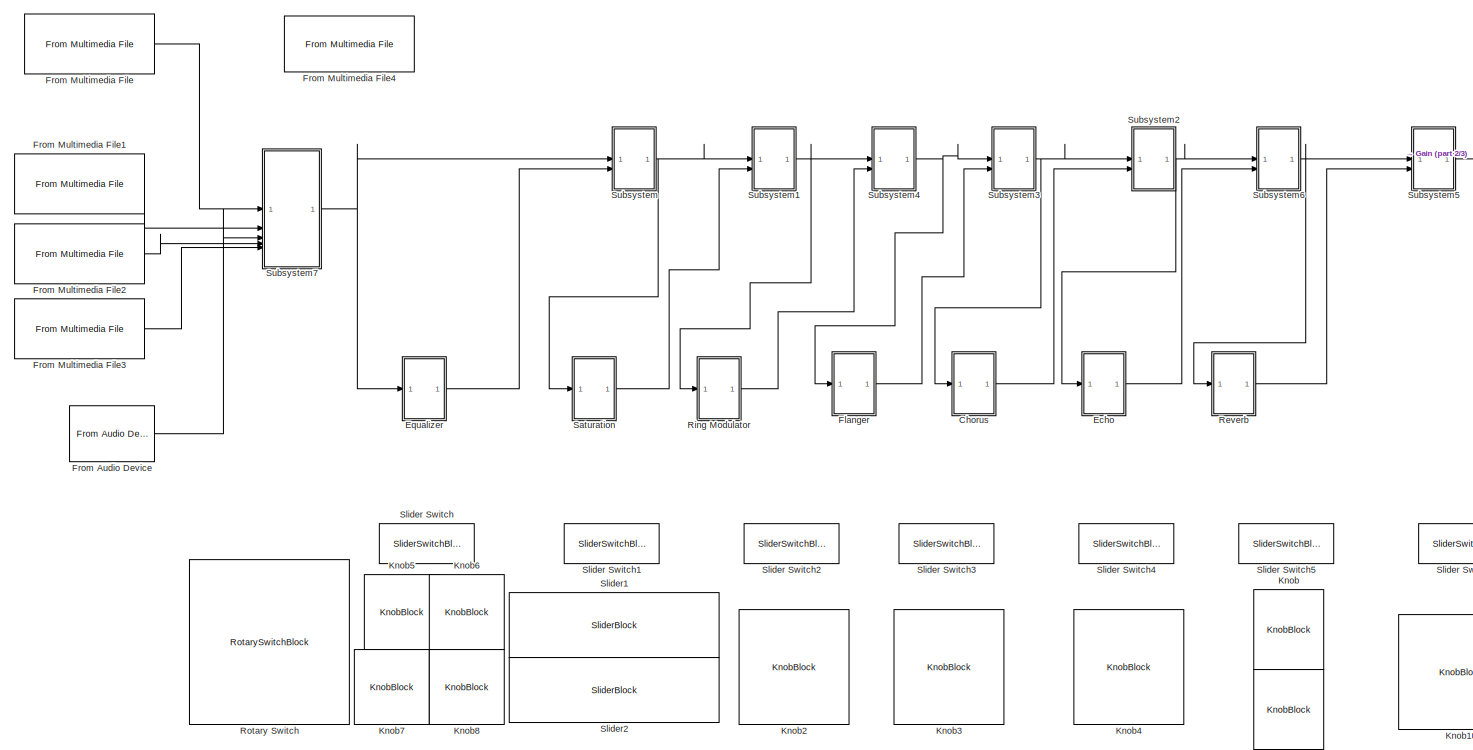
[diagram: root canvas - part 1/3, most of the canvas]
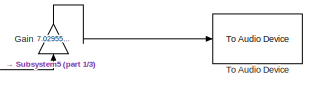
[diagram: root canvas - part 2/3, top right region]
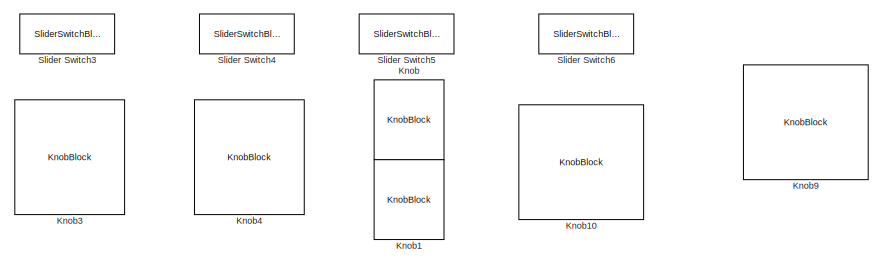
[diagram: root canvas - part 3/3, bottom right region]
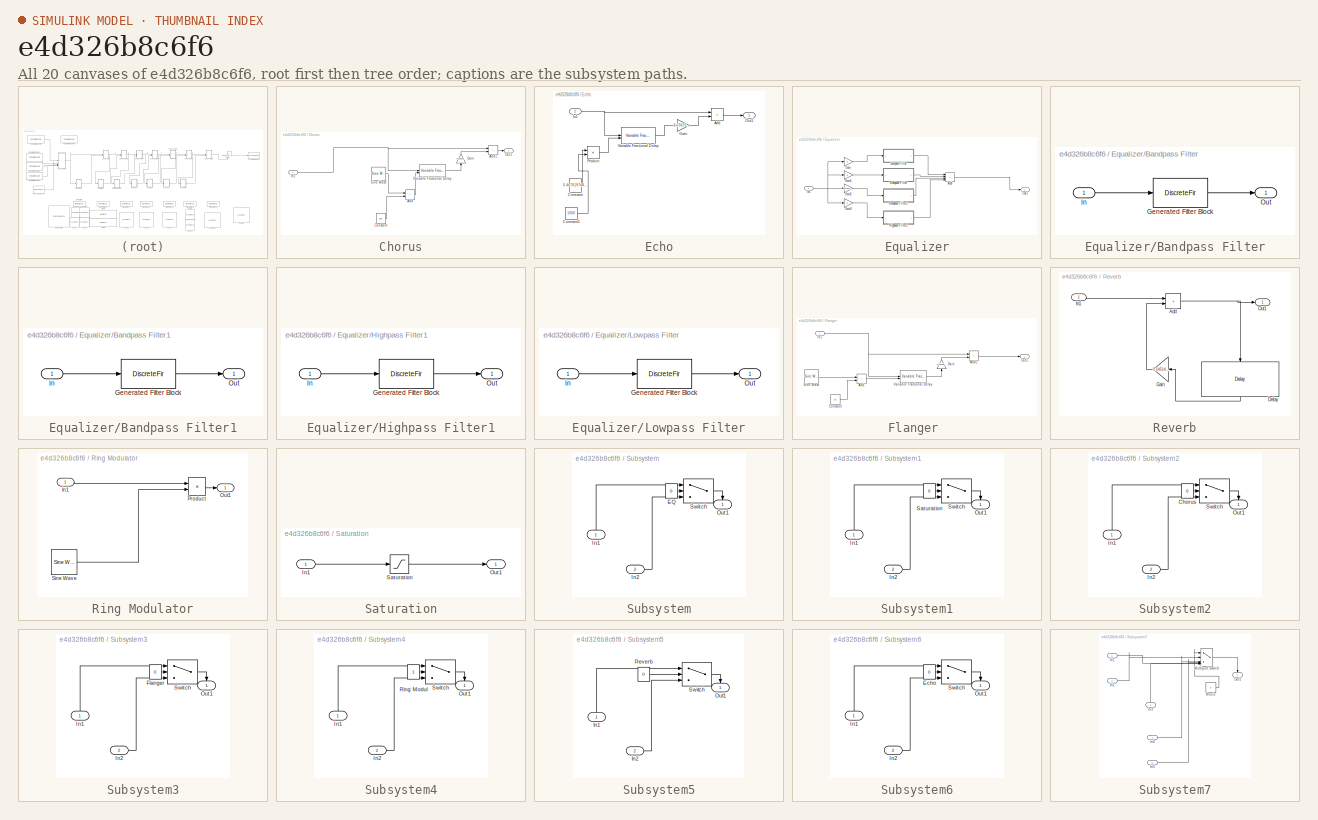
[diagram: thumbnail index - all 20 canvases of the model, root first then tree order]
MODEL slx_e4d326b8c6f6
KIND model
CONFIG AbsTol = auto
CONFIG EnableMultiTasking = off
CONFIG FixedStep = auto
CONFIG MaxStep = auto
CONFIG MinStep = auto
CONFIG RelTol = 1e-3
CONFIG SampleTimeConstraint = Unconstrained
CONFIG SolverName = VariableStepAuto
CONFIG StartTime = 0.0
CONFIG StopTime = 1000
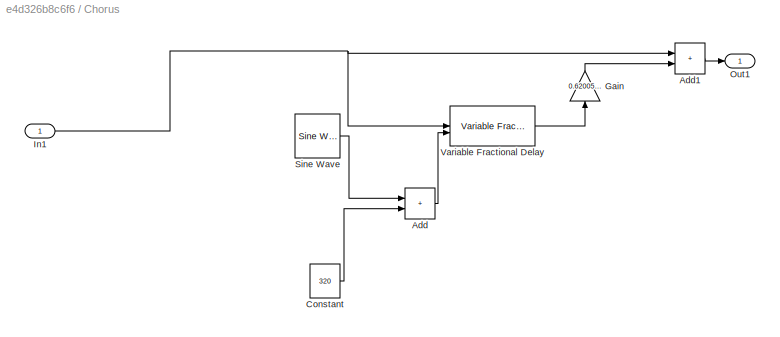
BLOCK [SubSystem] Chorus
BLOCK [Sum] Chorus/Add
  IconShape = rectangular
BLOCK [Sum] Chorus/Add1
  IconShape = rectangular
BLOCK [Constant] Chorus/Constant
  Value = 320
  VectorParams1D = off
BLOCK [Gain] Chorus/Gain
  Gain = 0.6200574119339334
  NameLocation = right
BLOCK [Inport] Chorus/In1
BLOCK [Outport] Chorus/Out1
BLOCK [Reference] Chorus/Sine Wave  REF=dspsrcs4/Sine Wave
  SourceBlock = dspsrcs4/Sine Wave
  SourceType = Sine Wave
BLOCK [Reference] Chorus/Variable Fractional Delay  REF=dspsigops/Variable
Fractional Delay
  SourceBlock = dspsigops/Variable\nFractional Delay
  SourceType = Variable Fractional Delay
  UserDataPersistent = on
BLOCK [SubSystem] Echo
BLOCK [Sum] Echo/Add
  IconShape = rectangular
BLOCK [Constant] Echo/Constant
  Value = 6.467019744697029
  VectorParams1D = off
BLOCK [Constant] Echo/Constant1
  Value = 1000
BLOCK [Gain] Echo/Gain
  Gain = 0.7007023620605469
BLOCK [Inport] Echo/In1
BLOCK [Outport] Echo/Out1
BLOCK [Product] Echo/Product
BLOCK [Reference] Echo/Variable Fractional Delay  REF=dspsigops/Variable
Fractional Delay
  SourceBlock = dspsigops/Variable\nFractional Delay
  SourceType = Variable Fractional Delay
  UserDataPersistent = on
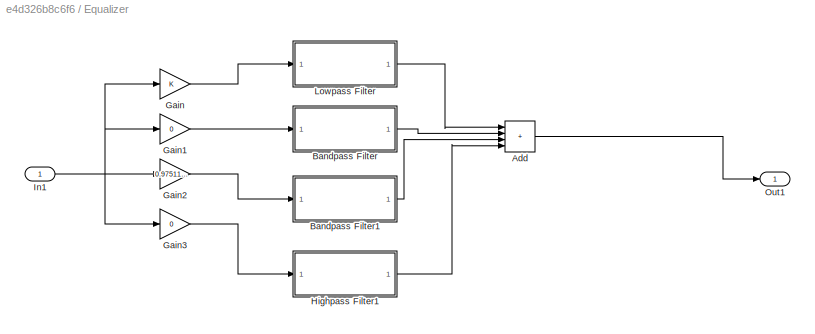
BLOCK [SubSystem] Equalizer
BLOCK [Sum] Equalizer/Add
  IconShape = rectangular
  Inputs = ++++
BLOCK [SubSystem] Equalizer/Bandpass Filter
  CopyFcn = fdesignblkfcn(gcbh, {'CopyFcn'});
  DialogController = fdesignblkfcn
  InitFcn = fdesignblkfcn(gcbh, {'InitFcn'});
  UserDataPersistent = on
BLOCK [DiscreteFir] Equalizer/Bandpass Filter/Generated Filter Block
  Coefficients = [-0.034227365537242295 0.018312757492087928 0.05932130178861178 -0.015649458947768258 0.0096465114342621835 -0.029035785159490478 -0.015761984269044724 -0.037689628472410135 -0.03202966742034466 -0.044813544994417052 -0.042077522064569023 -0.047994018438133036 -0.044347414970127598 -0.043895492779424998 -0.036914882245408523 -0.030447360988786105 -0.019612599669352172 -0.00858331876634379 0.004786...<+697ch>
  InputPortMap = u0
  InputProcessing = Columns as channels (frame based)
  OutputPortMap = o0
  Tag = BlockMethodSubSystem
BLOCK [Inport] Equalizer/Bandpass Filter/In
BLOCK [Outport] Equalizer/Bandpass Filter/Out
BLOCK [SubSystem] Equalizer/Bandpass Filter1
  CopyFcn = fdesignblkfcn(gcbh, {'CopyFcn'});
  DialogController = fdesignblkfcn
  InitFcn = fdesignblkfcn(gcbh, {'InitFcn'});
  UserDataPersistent = on
BLOCK [DiscreteFir] Equalizer/Bandpass Filter1/Generated Filter Block
  Coefficients = [-0.071193933975794793 0.042567551632574072 0.023370929263920877 0.0067492245502078505 -0.0056303528823154706 -0.012406515894683801 -0.012509643538729659 -0.0056607808720928483 0.0073925777727120202 0.024156862094491815 0.040950617859290002 0.05303589501571479 0.05614662588295434 0.047414277531303138 0.026950275664504888 -0.0021817284297539169 -0.033973814822860146 -0.06117405180846118 -0.07656021...<+699ch>
  InputPortMap = u0
  InputProcessing = Columns as channels (frame based)
  OutputPortMap = o0
  Tag = BlockMethodSubSystem
BLOCK [Inport] Equalizer/Bandpass Filter1/In
BLOCK [Outport] Equalizer/Bandpass Filter1/Out
BLOCK [Gain] Equalizer/Gain
BLOCK [Gain] Equalizer/Gain1
  Gain = 0
BLOCK [Gain] Equalizer/Gain2
  Gain = 0.9751138139661
BLOCK [Gain] Equalizer/Gain3
  Gain = 0
BLOCK [SubSystem] Equalizer/Highpass Filter1
  CopyFcn = fdesignblkfcn(gcbh, {'CopyFcn'});
  DialogController = fdesignblkfcn
  InitFcn = fdesignblkfcn(gcbh, {'InitFcn'});
  UserDataPersistent = on
BLOCK [DiscreteFir] Equalizer/Highpass Filter1/Generated Filter Block
  Coefficients = [0.018474008886137774 -0.07093427222798343 -0.026736009141952864 -0.012590249565781884 -0.0029223409381482746 0.0064166158658349477 0.01376997205732409 0.016707240639420411 0.013639039609664469 0.0049637238837780427 -0.0068574716590106451 -0.017827795097230564 -0.023758479772147303 -0.021504192552314477 -0.010454091224033886 0.0070581716995950124 0.025786675130562247 0.038995997151154212 0.0400909...<+699ch>
  InputPortMap = u0
  InputProcessing = Columns as channels (frame based)
  OutputPortMap = o0
  Tag = BlockMethodSubSystem
BLOCK [Inport] Equalizer/Highpass Filter1/In
BLOCK [Outport] Equalizer/Highpass Filter1/Out
BLOCK [Inport] Equalizer/In1
BLOCK [SubSystem] Equalizer/Lowpass Filter
  CopyFcn = fdesignblkfcn(gcbh, {'CopyFcn'});
  DialogController = fdesignblkfcn
  InitFcn = fdesignblkfcn(gcbh, {'InitFcn'});
  UserDataPersistent = on
BLOCK [DiscreteFir] Equalizer/Lowpass Filter/Generated Filter Block
  Coefficients = [-0.067571599194720749 0.028366275622582534 0.024365308441611347 0.021834882196456632 0.020229321096330865 0.019593102757112429 0.019467767446300618 0.01970710174125179 0.020316328767870182 0.021189381305964993 0.022233119686554535 0.023289912862881998 0.024434404835929416 0.025590101085555161 0.026793987513412713 0.027904494200213244 0.028994063526814901 0.029963415719363243 0.030889637193174065 ...<+670ch>
  InputPortMap = u0
  InputProcessing = Columns as channels (frame based)
  OutputPortMap = o0
  Tag = BlockMethodSubSystem
BLOCK [Inport] Equalizer/Lowpass Filter/In
BLOCK [Outport] Equalizer/Lowpass Filter/Out
BLOCK [Outport] Equalizer/Out1
BLOCK [SubSystem] Flanger 
BLOCK [Sum] Flanger /Add
  IconShape = rectangular
BLOCK [Sum] Flanger /Add1
  IconShape = rectangular
BLOCK [Constant] Flanger /Constant
  Value = 25
  VectorParams1D = off
BLOCK [Gain] Flanger /Gain
  Gain = 0.762192710491
  NameLocation = right
BLOCK [Inport] Flanger /In1
BLOCK [Outport] Flanger /Out1
BLOCK [Reference] Flanger /Sine Wave  REF=dspsrcs4/Sine Wave
  SourceBlock = dspsrcs4/Sine Wave
  SourceType = Sine Wave
BLOCK [Reference] Flanger /Variable Fractional Delay  REF=dspsigops/Variable
Fractional Delay
  SourceBlock = dspsigops/Variable\nFractional Delay
  SourceType = Variable Fractional Delay
  UserDataPersistent = on
BLOCK [Reference] From Audio Device  REF=dspobslib/From Audio
Device
  SourceBlock = dspobslib/From Audio\nDevice
  SourceType = From Audio Device
BLOCK [Reference] From Multimedia File  REF=dspvision/From Multimedia File
  Commented = on
  SourceBlock = dspvision/From Multimedia File
  SourceType = From Multimedia File
BLOCK [Reference] From Multimedia File1  REF=dspvision/From Multimedia File
  Commented = on
  SourceBlock = dspvision/From Multimedia File
  SourceType = From Multimedia File
BLOCK [Reference] From Multimedia File2  REF=dspvision/From Multimedia File
  Commented = on
  SourceBlock = dspvision/From Multimedia File
  SourceType = From Multimedia File
BLOCK [Reference] From Multimedia File3  REF=dspvision/From Multimedia File
  Commented = on
  SourceBlock = dspvision/From Multimedia File
  SourceType = From Multimedia File
BLOCK [Reference] From Multimedia File4  REF=dspvision/From Multimedia File
  SourceBlock = dspvision/From Multimedia File
  SourceType = From Multimedia File
BLOCK [Gain] Gain
  Gain = 7.029555285551793
  NameLocation = right
BLOCK [KnobBlock] Knob
  ScaleMax = 10
  ScaleMin = 5
BLOCK [KnobBlock] Knob1
  ScaleMax = 1
BLOCK [KnobBlock] Knob10
  ScaleMax = 1
BLOCK [KnobBlock] Knob2
  ScaleMax = 1000
BLOCK [KnobBlock] Knob3
  ScaleMax = 1
BLOCK [KnobBlock] Knob4
  ScaleMax = 1
BLOCK [KnobBlock] Knob5
  ScaleMax = 1
BLOCK [KnobBlock] Knob6
  ScaleMax = 1
BLOCK [KnobBlock] Knob7
  ScaleMax = 1
BLOCK [KnobBlock] Knob8
  ScaleMax = 1
BLOCK [KnobBlock] Knob9
  ScaleMax = 10
BLOCK [SubSystem] Reverb
BLOCK [Sum] Reverb/Add
  IconShape = rectangular
BLOCK [Delay] Reverb/Delay
  DelayLength = 1024
  DelayLengthUpperLimit = 5000
  InitialCondition = 4000
  InputPortMap = u0
  InputProcessing = Columns as channels (frame based)
  NameLocation = left
BLOCK [Gain] Reverb/Gain
  Gain = 0.1451481246948242
  NameLocation = top
BLOCK [Inport] Reverb/In1
BLOCK [Outport] Reverb/Out1
BLOCK [SubSystem] Ring Modulator
BLOCK [Inport] Ring Modulator/In1
BLOCK [Outport] Ring Modulator/Out1
BLOCK [Product] Ring Modulator/Product
BLOCK [Reference] Ring Modulator/Sine Wave  REF=dspsrcs4/Sine Wave
  SourceBlock = dspsrcs4/Sine Wave
  SourceType = Sine Wave
BLOCK [RotarySwitchBlock] Rotary Switch
BLOCK [SubSystem] Saturation
BLOCK [Inport] Saturation/In1
BLOCK [Outport] Saturation/Out1
BLOCK [Saturate] Saturation/Saturation
  LowerLimit = -1.238950010942405
  UpperLimit = 0.7447514266955877
BLOCK [SliderSwitchBlock] Slider Switch
BLOCK [SliderSwitchBlock] Slider Switch1
BLOCK [SliderSwitchBlock] Slider Switch2
BLOCK [SliderSwitchBlock] Slider Switch3
BLOCK [SliderSwitchBlock] Slider Switch4
BLOCK [SliderSwitchBlock] Slider Switch5
BLOCK [SliderSwitchBlock] Slider Switch6
BLOCK [SliderBlock] Slider1
  ScaleMax = 5
  ScaleMin = 0.1
BLOCK [SliderBlock] Slider2
  ScaleMax = -0.1
  ScaleMin = -5
BLOCK [SubSystem] Subsystem
BLOCK [Constant] Subsystem/EQ
  Value = 0
  VectorParams1D = off
BLOCK [Inport] Subsystem/In1
  NameLocation = right
BLOCK [Inport] Subsystem/In2
  Port = 2
BLOCK [Outport] Subsystem/Out1
  NameLocation = right
BLOCK [Switch] Subsystem/Switch
  Criteria = u2 > Threshold
  InputSameDT = off
  SaturateOnIntegerOverflow = off
BLOCK [SubSystem] Subsystem1
BLOCK [Inport] Subsystem1/In1
  NameLocation = right
BLOCK [Inport] Subsystem1/In2
  Port = 2
BLOCK [Outport] Subsystem1/Out1
  NameLocation = right
BLOCK [Constant] Subsystem1/Saturation
  Value = 0
  VectorParams1D = off
BLOCK [Switch] Subsystem1/Switch
  Criteria = u2 > Threshold
  InputSameDT = off
  SaturateOnIntegerOverflow = off
BLOCK [SubSystem] Subsystem2
BLOCK [Constant] Subsystem2/Chorus
  Value = 0
  VectorParams1D = off
BLOCK [Inport] Subsystem2/In1
  NameLocation = right
BLOCK [Inport] Subsystem2/In2
  Port = 2
BLOCK [Outport] Subsystem2/Out1
  NameLocation = right
BLOCK [Switch] Subsystem2/Switch
  Criteria = u2 > Threshold
  InputSameDT = off
  SaturateOnIntegerOverflow = off
BLOCK [SubSystem] Subsystem3
BLOCK [Constant] Subsystem3/Flanger
  Value = 0
  VectorParams1D = off
BLOCK [Inport] Subsystem3/In1
  NameLocation = right
BLOCK [Inport] Subsystem3/In2
  Port = 2
BLOCK [Outport] Subsystem3/Out1
  NameLocation = right
BLOCK [Switch] Subsystem3/Switch
  Criteria = u2 > Threshold
  InputSameDT = off
  SaturateOnIntegerOverflow = off
BLOCK [SubSystem] Subsystem4
BLOCK [Inport] Subsystem4/In1
  NameLocation = right
BLOCK [Inport] Subsystem4/In2
  Port = 2
BLOCK [Outport] Subsystem4/Out1
  NameLocation = right
BLOCK [Constant] Subsystem4/Ring Modul
  VectorParams1D = off
BLOCK [Switch] Subsystem4/Switch
  Criteria = u2 > Threshold
  InputSameDT = off
  SaturateOnIntegerOverflow = off
BLOCK [SubSystem] Subsystem5
BLOCK [Inport] Subsystem5/In1
  NameLocation = right
BLOCK [Inport] Subsystem5/In2
  Port = 2
BLOCK [Outport] Subsystem5/Out1
  NameLocation = right
BLOCK [Constant] Subsystem5/Reverb
  Value = 0
  VectorParams1D = off
BLOCK [Switch] Subsystem5/Switch
  Criteria = u2 > Threshold
  InputSameDT = off
  SaturateOnIntegerOverflow = off
BLOCK [SubSystem] Subsystem6
BLOCK [Constant] Subsystem6/Echo
  Value = 0
  VectorParams1D = off
BLOCK [Inport] Subsystem6/In1
  NameLocation = right
BLOCK [Inport] Subsystem6/In2
  Port = 2
BLOCK [Outport] Subsystem6/Out1
  NameLocation = right
BLOCK [Switch] Subsystem6/Switch
  Criteria = u2 > Threshold
  InputSameDT = off
  SaturateOnIntegerOverflow = off
BLOCK [SubSystem] Subsystem7
BLOCK [Inport] Subsystem7/In1
BLOCK [Inport] Subsystem7/In2
  Port = 2
BLOCK [Inport] Subsystem7/In3
  NameLocation = right
  Port = 3
BLOCK [Inport] Subsystem7/In4
  Port = 4
BLOCK [Inport] Subsystem7/In5
  Port = 5
BLOCK [MultiPortSwitch] Subsystem7/Multiport Switch
  InputSameDT = off
  Inputs = 5
  SaturateOnIntegerOverflow = off
BLOCK [Constant] Subsystem7/Music
  Value = 5
BLOCK [Outport] Subsystem7/Out1
  NameLocation = right
BLOCK [Reference] To Audio Device  REF=dspobslib/To Audio
Device
  SourceBlock = dspobslib/To Audio\nDevice
  SourceType = To Audio Device
LINE Chorus/Add1:1 -> Chorus/Out1:1
LINE Chorus/Add:1 -> Chorus/Variable Fractional Delay:2
LINE Chorus/Constant:1 -> Chorus/Add:2
LINE Chorus/Gain:1 -> Chorus/Add1:2
NET Chorus/In1:1 -> Chorus/Add1:1, Chorus/Variable Fractional Delay:1
LINE Chorus/Sine Wave:1 -> Chorus/Add:1
LINE Chorus/Variable Fractional Delay:1 -> Chorus/Gain:1
LINE Chorus:1 -> Subsystem2:2
LINE Echo/Add:1 -> Echo/Out1:1
LINE Echo/Constant1:1 -> Echo/Product:2
LINE Echo/Constant:1 -> Echo/Product:1
LINE Echo/Gain:1 -> Echo/Add:2
NET Echo/In1:1 -> Echo/Add:1, Echo/Variable Fractional Delay:1
LINE Echo/Product:1 -> Echo/Variable Fractional Delay:2
LINE Echo/Variable Fractional Delay:1 -> Echo/Gain:1
LINE Echo:1 -> Subsystem6:2
LINE Equalizer/Add:1 -> Equalizer/Out1:1
LINE Equalizer/Bandpass Filter1:1 -> Equalizer/Add:3
LINE Equalizer/Bandpass Filter:1 -> Equalizer/Add:2
LINE Equalizer/Gain1:1 -> Equalizer/Bandpass Filter:1
LINE Equalizer/Gain2:1 -> Equalizer/Bandpass Filter1:1
LINE Equalizer/Gain3:1 -> Equalizer/Highpass Filter1:1
LINE Equalizer/Gain:1 -> Equalizer/Lowpass Filter:1
LINE Equalizer/Highpass Filter1:1 -> Equalizer/Add:4
NET Equalizer/In1:1 -> Equalizer/Gain1:1, Equalizer/Gain2:1, Equalizer/Gain3:1, Equalizer/Gain:1
LINE Equalizer/Lowpass Filter:1 -> Equalizer/Add:1
LINE Equalizer:1 -> Subsystem:2
LINE Flanger /Add1:1 -> Flanger /Out1:1
LINE Flanger /Add:1 -> Flanger /Variable Fractional Delay:2
LINE Flanger /Constant:1 -> Flanger /Add:2
LINE Flanger /Gain:1 -> Flanger /Add1:2
NET Flanger /In1:1 -> Flanger /Add1:1, Flanger /Variable Fractional Delay:1
LINE Flanger /Sine Wave:1 -> Flanger /Add:1
LINE Flanger /Variable Fractional Delay:1 -> Flanger /Gain:1
LINE Flanger :1 -> Subsystem3:2
LINE From Audio Device:1 -> Subsystem7:3
LINE From Multimedia File1:1 -> Subsystem7:2
LINE From Multimedia File2:1 -> Subsystem7:4
LINE From Multimedia File3:1 -> Subsystem7:5
LINE From Multimedia File:1 -> Subsystem7:1
LINE Gain:1 -> To Audio Device:1
NET Reverb/Add:1 -> Reverb/Delay:1, Reverb/Out1:1
LINE Reverb/Delay:1 -> Reverb/Gain:1
LINE Reverb/Gain:1 -> Reverb/Add:2
LINE Reverb/In1:1 -> Reverb/Add:1
LINE Reverb:1 -> Subsystem5:2
LINE Ring Modulator/In1:1 -> Ring Modulator/Product:1
LINE Ring Modulator/Product:1 -> Ring Modulator/Out1:1
LINE Ring Modulator/Sine Wave:1 -> Ring Modulator/Product:2
LINE Ring Modulator:1 -> Subsystem4:2
LINE Saturation/In1:1 -> Saturation/Saturation:1
LINE Saturation/Saturation:1 -> Saturation/Out1:1
LINE Saturation:1 -> Subsystem1:2
LINE Subsystem/EQ:1 -> Subsystem/Switch:2
LINE Subsystem/In1:1 -> Subsystem/Switch:1
LINE Subsystem/In2:1 -> Subsystem/Switch:3
LINE Subsystem/Switch:1 -> Subsystem/Out1:1
LINE Subsystem1/In1:1 -> Subsystem1/Switch:1
LINE Subsystem1/In2:1 -> Subsystem1/Switch:3
LINE Subsystem1/Saturation:1 -> Subsystem1/Switch:2
LINE Subsystem1/Switch:1 -> Subsystem1/Out1:1
NET Subsystem1:1 -> Ring Modulator:1, Subsystem4:1
LINE Subsystem2/Chorus:1 -> Subsystem2/Switch:2
LINE Subsystem2/In1:1 -> Subsystem2/Switch:1
LINE Subsystem2/In2:1 -> Subsystem2/Switch:3
LINE Subsystem2/Switch:1 -> Subsystem2/Out1:1
NET Subsystem2:1 -> Echo:1, Subsystem6:1
LINE Subsystem3/Flanger:1 -> Subsystem3/Switch:2
LINE Subsystem3/In1:1 -> Subsystem3/Switch:1
LINE Subsystem3/In2:1 -> Subsystem3/Switch:3
LINE Subsystem3/Switch:1 -> Subsystem3/Out1:1
NET Subsystem3:1 -> Chorus:1, Subsystem2:1
LINE Subsystem4/In1:1 -> Subsystem4/Switch:1
LINE Subsystem4/In2:1 -> Subsystem4/Switch:3
LINE Subsystem4/Ring Modul:1 -> Subsystem4/Switch:2
LINE Subsystem4/Switch:1 -> Subsystem4/Out1:1
NET Subsystem4:1 -> Flanger :1, Subsystem3:1
LINE Subsystem5/In1:1 -> Subsystem5/Switch:1
LINE Subsystem5/In2:1 -> Subsystem5/Switch:3
LINE Subsystem5/Reverb:1 -> Subsystem5/Switch:2
LINE Subsystem5/Switch:1 -> Subsystem5/Out1:1
LINE Subsystem5:1 -> Gain:1
LINE Subsystem6/Echo:1 -> Subsystem6/Switch:2
LINE Subsystem6/In1:1 -> Subsystem6/Switch:1
LINE Subsystem6/In2:1 -> Subsystem6/Switch:3
LINE Subsystem6/Switch:1 -> Subsystem6/Out1:1
NET Subsystem6:1 -> Reverb:1, Subsystem5:1
LINE Subsystem7/In1:1 -> Subsystem7/Multiport Switch:5
LINE Subsystem7/In2:1 -> Subsystem7/Multiport Switch:2
LINE Subsystem7/In3:1 -> Subsystem7/Multiport Switch:6
LINE Subsystem7/In4:1 -> Subsystem7/Multiport Switch:3
LINE Subsystem7/In5:1 -> Subsystem7/Multiport Switch:4
LINE Subsystem7/Multiport Switch:1 -> Subsystem7/Out1:1
LINE Subsystem7/Music:1 -> Subsystem7/Multiport Switch:1
NET Subsystem7:1 -> Equalizer:1, Subsystem:1
NET Subsystem:1 -> Saturation:1, Subsystem1:1
note: NET lines group one-source signal fan-out (src -> all destinations, sorted); 1:1 wires keep LINE
